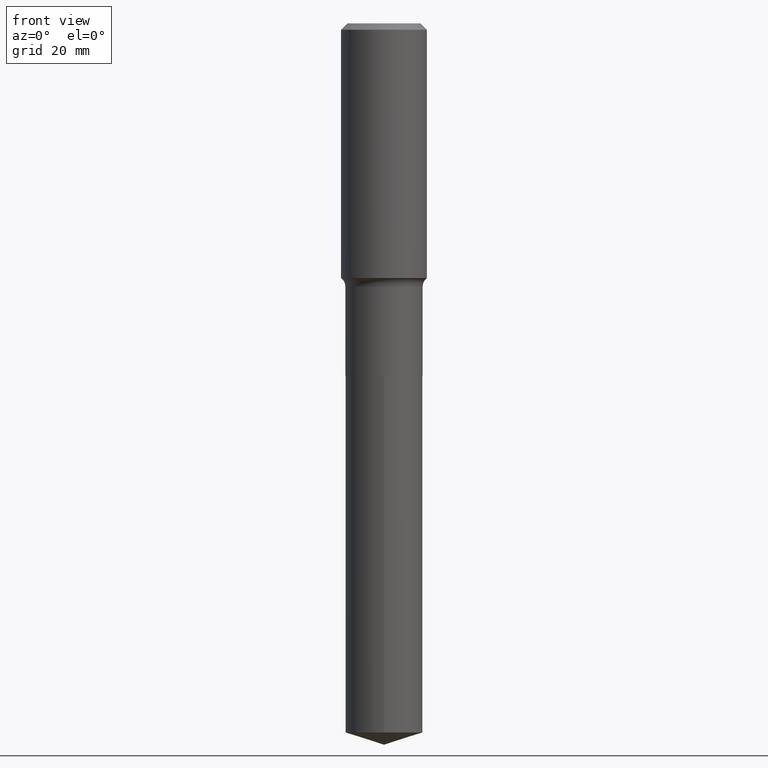
[diagram: clean part render]
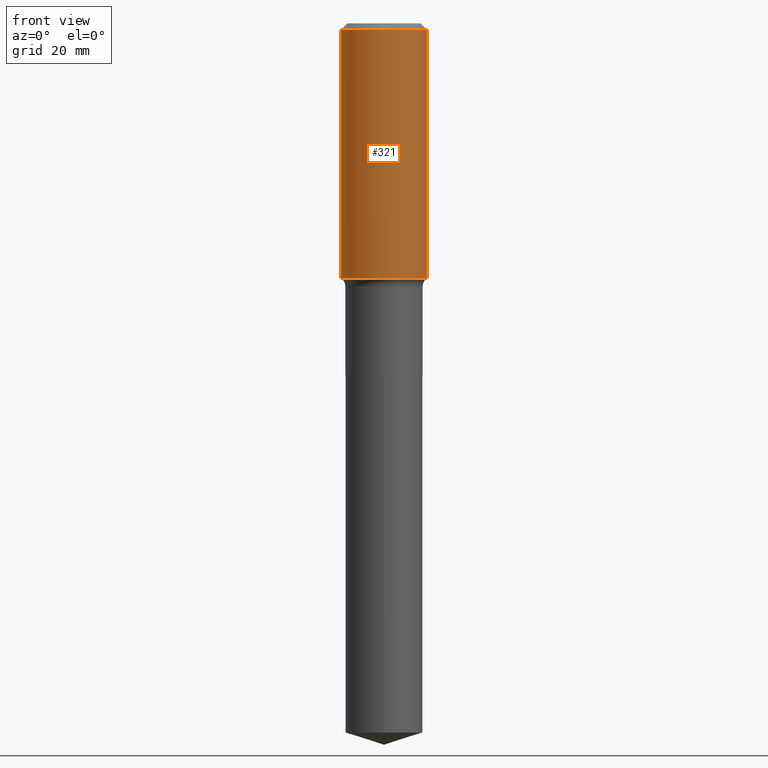
[diagram: same view with one face highlighted and labeled with its STEP entity id]
A machine part, front view. The second image highlights one B-rep face of the part: STEP entity #321.
In plain terms, the highlighted cylindrical surface (partial cylindrical patch) has radius 7.9375 mm, axis along (-0, 0, 1).
Its self-contained STEP definition (entity closure, byte-faithful):
#10 = EDGE_CURVE ( 'NONE', #301, #485, #489, .T. ) ;
#12 = AXIS2_PLACEMENT_3D ( 'NONE', #401, #289, #369 ) ;
#21 = VECTOR ( 'NONE', #42, 39.37007874015748143 ) ;
#28 = EDGE_CURVE ( 'NONE', #317, #476, #36, .T. ) ;
#36 = LINE ( 'NONE', #450, #21 ) ;
#42 = DIRECTION ( 'NONE',  ( -2.445468806185136877E-29, 3.491481338843145188E-15, 1.000000000000000000 ) ) ;
#53 = EDGE_CURVE ( 'NONE', #476, #485, #482, .T. ) ;
#58 = EDGE_LOOP ( 'NONE', ( #238, #324, #182, #100 ) ) ;
#62 = CYLINDRICAL_SURFACE ( 'NONE', #12, 0.3125000000000001665 ) ;
#71 = DIRECTION ( 'NONE',  ( -2.445468806185136597E-29, 3.491481338843145583E-15, 1.000000000000000000 ) ) ;
#98 = CARTESIAN_POINT ( 'NONE',  ( 0.3125000000000001665, -8.652458232588906309E-15, -1.853162531281289160 ) ) ;
#100 = ORIENTED_EDGE ( 'NONE', *, *, #53, .F. ) ;
#108 = DIRECTION ( 'NONE',  ( -2.445468806185136877E-29, 3.491481338843145188E-15, 1.000000000000000000 ) ) ;
#130 = CARTESIAN_POINT ( 'NONE',  ( -0.3125000000000001665, -4.249836346561634092E-15, -1.853162531281289160 ) ) ;
#131 = EDGE_CURVE ( 'NONE', #317, #301, #190, .T. ) ;
#182 = ORIENTED_EDGE ( 'NONE', *, *, #10, .T. ) ;
#186 = DIRECTION ( 'NONE',  ( 1.000000000000000000, -6.982962677686266711E-15, 0.000000000000000000 ) ) ;
#190 = CIRCLE ( 'NONE', #407, 0.3125000000000002220 ) ;
#238 = ORIENTED_EDGE ( 'NONE', *, *, #28, .F. ) ;
#289 = DIRECTION ( 'NONE',  ( -2.445468806185136597E-29, 3.491481338843145583E-15, 1.000000000000000000 ) ) ;
#297 = CARTESIAN_POINT ( 'NONE',  ( 0.3125000000000000000, -2.345839024535231998E-15, -0.04687500000000028449 ) ) ;
#301 = VERTEX_POINT ( 'NONE', #98 ) ;
#317 = VERTEX_POINT ( 'NONE', #130 ) ;
#321 = ADVANCED_FACE ( 'NONE', ( #479 ), #62, .T. ) ;
#324 = ORIENTED_EDGE ( 'NONE', *, *, #131, .T. ) ;
#337 = CARTESIAN_POINT ( 'NONE',  ( 1.146313502899289786E-30, -1.636631877582734538E-16, -0.04687500000000028449 ) ) ;
#344 = CARTESIAN_POINT ( 'NONE',  ( 4.531851163039479830E-29, -6.470282395811947962E-15, -1.853162531281289160 ) ) ;
#345 = AXIS2_PLACEMENT_3D ( 'NONE', #337, #71, #372 ) ;
#369 = DIRECTION ( 'NONE',  ( 1.000000000000000000, -6.982962677686266711E-15, 4.876176775795935232E-29 ) ) ;
#372 = DIRECTION ( 'NONE',  ( 1.000000000000000000, -6.982962677686266711E-15, 0.000000000000000000 ) ) ;
#401 = CARTESIAN_POINT ( 'NONE',  ( 0.000000000000000000, 0.000000000000000000, 0.000000000000000000 ) ) ;
#407 = AXIS2_PLACEMENT_3D ( 'NONE', #344, #426, #186 ) ;
#415 = VECTOR ( 'NONE', #108, 39.37007874015748143 ) ;
#426 = DIRECTION ( 'NONE',  ( -2.445468806185136597E-29, 3.491481338843145583E-15, 1.000000000000000000 ) ) ;
#450 = CARTESIAN_POINT ( 'NONE',  ( -0.3125000000000001665, 2.220446049250314264E-15, -1.537167215704658792E-29 ) ) ;
#453 = CARTESIAN_POINT ( 'NONE',  ( 0.3125000000000001665, -2.182175836776959530E-15, 1.523805242436230636E-29 ) ) ;
#455 = CARTESIAN_POINT ( 'NONE',  ( -0.3125000000000000000, -1.096526742534796345E-15, -0.04687500000000028449 ) ) ;
#476 = VERTEX_POINT ( 'NONE', #455 ) ;
#479 = FACE_OUTER_BOUND ( 'NONE', #58, .T. ) ;
#482 = CIRCLE ( 'NONE', #345, 0.3125000000000000000 ) ;
#485 = VERTEX_POINT ( 'NONE', #297 ) ;
#489 = LINE ( 'NONE', #453, #415 ) ;